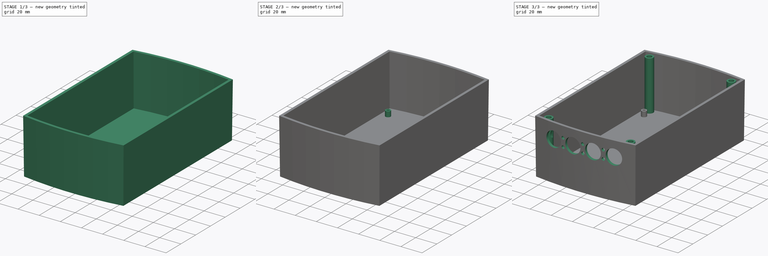
[diagram: build sequence overview — one tinted view per stage of 3, left to right]
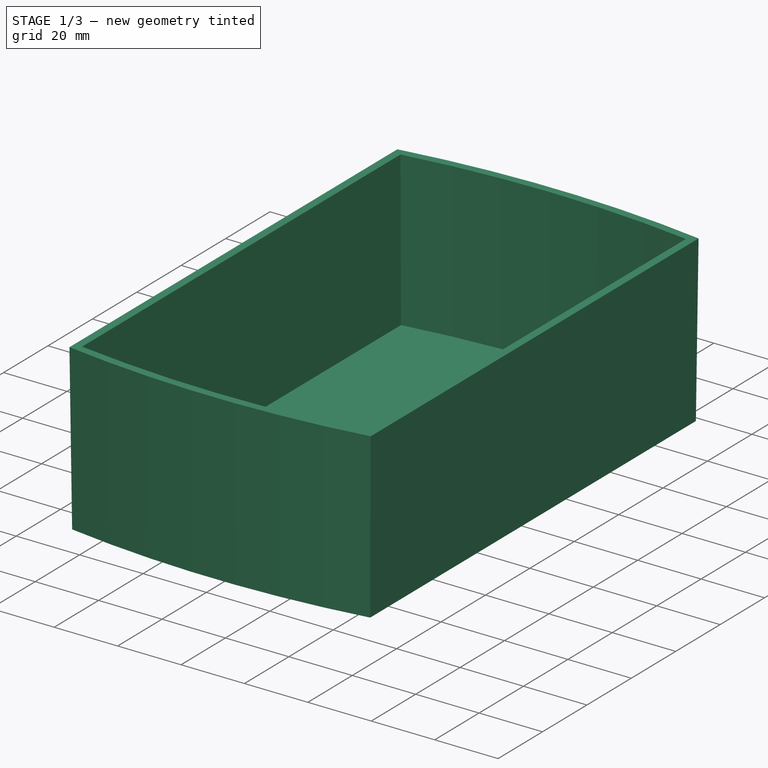
[diagram: stage 1 of 3 — iso view after this stage's code; geometry added in this stage tinted green]
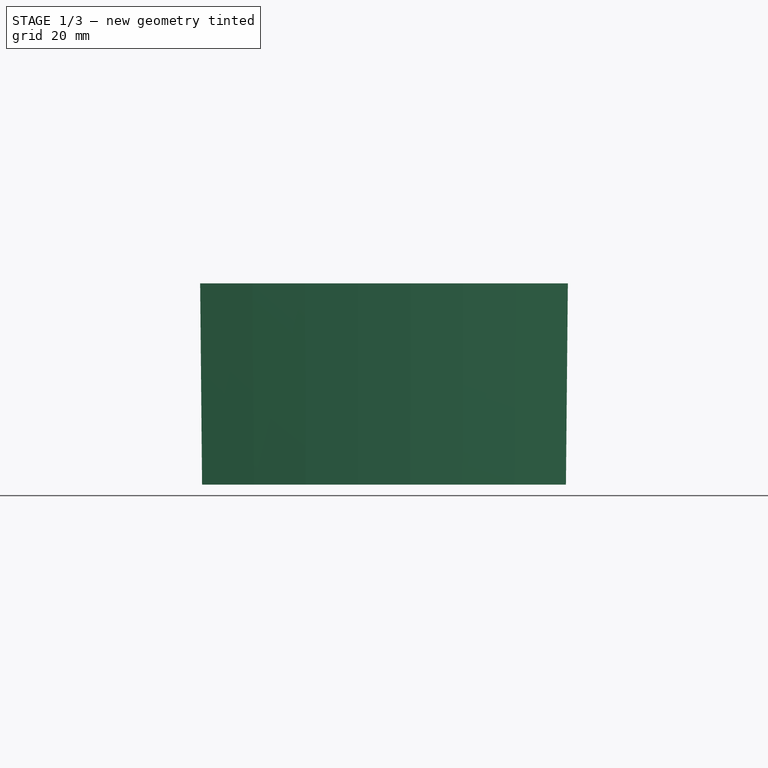
[diagram: stage 1 of 3 — front view after this stage's code; geometry added in this stage tinted green]
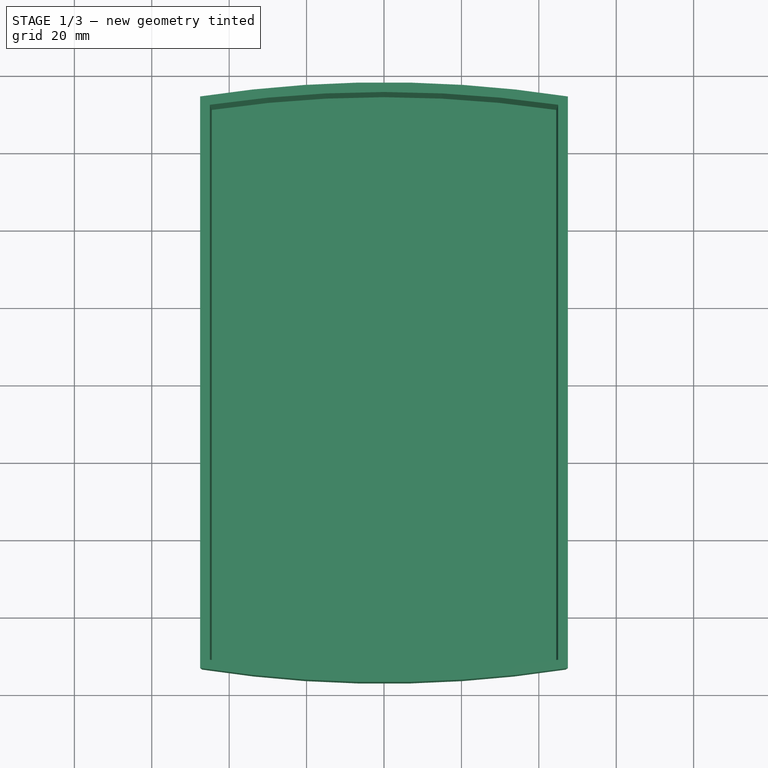
[diagram: stage 1 of 3 — top view after this stage's code; geometry added in this stage tinted green]
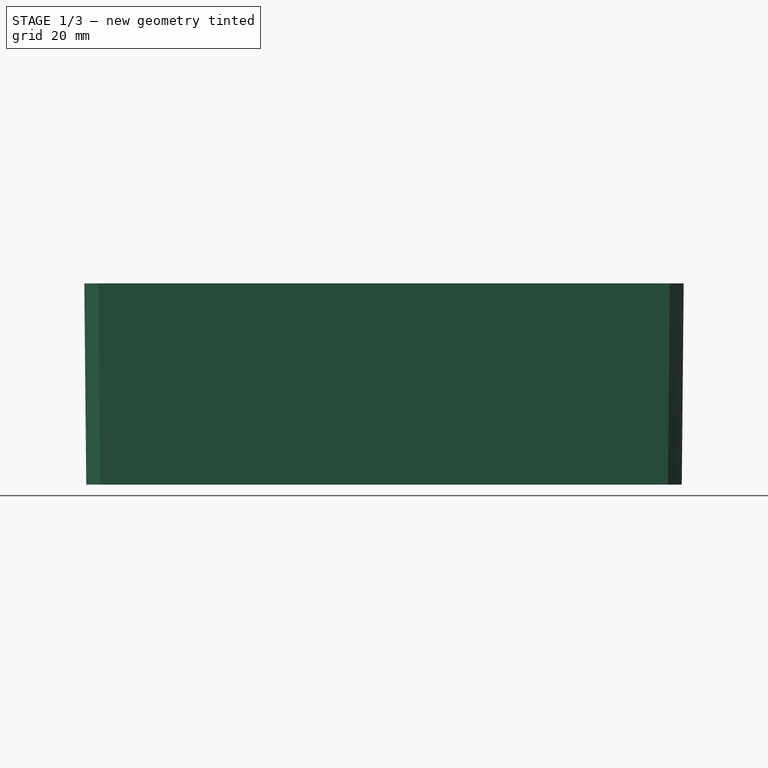
[diagram: stage 1 of 3 — right view after this stage's code; geometry added in this stage tinted green]
FCSTD DOCUMENT  (FreeCAD 1.0R39285 (Git))
Label: CBOX11004
License: All rights reserved
LicenseURL: https://en.wikipedia.org/wiki/All_rights_reserved
objects: Sketcher::SketchObject×7, PartDesign::Pad×2, PartDesign::Plane×1, PartDesign::AdditiveLoft×1, PartDesign::SubtractiveLoft×1, PartDesign::Pocket×1, PartDesign::Body×1
note: 31 computed .brp shape members not serialized (recipe doc carries the construction recipe); baked Part::Feature solids carry a one-line shape summary decoded from their .brp

FEATURE [Sketcher::SketchObject] Sketch
  ArcFitTolerance = 1e-06
  AttachmentSupport = -> [XY_Plane]
  FullyConstrained = true
  MakeInternals = false
  MapMode = 5
  sketch-geometry (10):
    g0: LineSegment StartX=-47 StartY=73.35 StartZ=0 EndX=-47 EndY=-73.35 EndZ=0
    g1: LineSegment [constr] StartX=-47 StartY=-73.35 StartZ=0 EndX=47 EndY=-73.35 EndZ=0
    g2: LineSegment StartX=47 StartY=-73.35 StartZ=0 EndX=47 EndY=73.35 EndZ=0
    g3: LineSegment [constr] StartX=47 StartY=73.35 StartZ=0 EndX=-47 EndY=73.35 EndZ=0
    g4: LineSegment [constr] StartX=-47 StartY=73.35 StartZ=0 EndX=47 EndY=-73.35 EndZ=0
    g5: LineSegment [constr] StartX=47 StartY=73.35 StartZ=0 EndX=-47 EndY=-73.35 EndZ=0
    g6: ArcOfCircle CenterX=-9.23e-14 CenterY=-227.428 CenterZ=0 NormalX=0 NormalY=0 NormalZ=1 AngleXU=0 Radius=304.428 StartAngle=1.41579 EndAngle=1.7258
    g7: ArcOfCircle CenterX=-8.03e-14 CenterY=227.428 CenterZ=0 NormalX=0 NormalY=0 NormalZ=1 AngleXU=0 Radius=304.428 StartAngle=4.55738 EndAngle=4.8674
    g8: GeomPoint X=0 Y=77 Z=0
    g9: GeomPoint X=0 Y=-77 Z=0
  constraints (26):
    c: Coincident(g0,g1)
    c: Coincident(g1,g2)
    c: Coincident(g2,g3)
    c: Coincident(g3,g0)
    c: Vertical(g0)
    c: Vertical(g2)
    c: Horizontal(g1)
    c: Horizontal(g3)
    c: Coincident(g4,g0)
    c: Coincident(g4,g1)
    c: Coincident(g5,g2)
    c: Coincident(g5,g0)
    c: PointOnObject(g-1,g4)
    c: PointOnObject(g-1,g5)
    c: Distance(g2,g0) = 94
    c: Coincident(g6,g0)
    c: Coincident(g6,g2)
    c: Coincident(g7,g0)
    c: Coincident(g7,g1)
    c: Equal(g6,g7)
    c: PointOnObject(g8,g6)
    c: PointOnObject(g9,g7)
    c: PointOnObject(g9,g-2)
    c: PointOnObject(g8,g-2)
    c: DistanceY(g9,g8) = 154
    c: DistanceY(g2,g2) = 146.7
FEATURE [PartDesign::Plane] DatumPlane
  AttachmentOffset = pos=(0,0,52) rot=(0,0,1;0rad)
  AttachmentSupport = -> [Sketch]
  Length = 119.263
  MapMode = 2
  Placement = pos=(0,0,52) rot=(0,0,1;0rad)
  ResizeMode = 0
  Width = 179.189
FEATURE [Sketcher::SketchObject] Sketch001
  ArcFitTolerance = 1e-06
  AttachmentSupport = -> [DatumPlane]
  FullyConstrained = true
  MakeInternals = false
  MapMode = 5
  Placement = pos=(0,0,52) rot=(0,0,1;0rad)
  sketch-geometry (10):
    g0: LineSegment [constr] StartX=-47.5 StartY=-73.85 StartZ=0 EndX=47.5 EndY=-73.85 EndZ=0
    g1: LineSegment StartX=47.5 StartY=-73.85 StartZ=0 EndX=47.5 EndY=73.85 EndZ=0
    g2: LineSegment [constr] StartX=47.5 StartY=73.85 StartZ=0 EndX=-47.5 EndY=73.85 EndZ=0
    g3: LineSegment StartX=-47.5 StartY=73.85 StartZ=0 EndX=-47.5 EndY=-73.85 EndZ=0
    g4: LineSegment [constr] StartX=-47.5 StartY=73.85 StartZ=0 EndX=47.5 EndY=-73.85 EndZ=0
    g5: LineSegment [constr] StartX=-47.5 StartY=-73.85 StartZ=0 EndX=47.5 EndY=73.85 EndZ=0
    g6: ArcOfCircle CenterX=-1.84e-14 CenterY=-233.4 CenterZ=0 NormalX=0 NormalY=0 NormalZ=1 AngleXU=0 Radius=310.9 StartAngle=1.41741 EndAngle=1.72418
    g7: ArcOfCircle CenterX=5.84e-14 CenterY=233.4 CenterZ=0 NormalX=0 NormalY=0 NormalZ=1 AngleXU=0 Radius=310.9 StartAngle=4.55901 EndAngle=4.86577
    g8: GeomPoint X=0 Y=77.5 Z=0
    g9: GeomPoint X=0 Y=-77.5 Z=0
  constraints (26):
    c: Coincident(g0,g1)
    c: Coincident(g1,g2)
    c: Coincident(g2,g3)
    c: Coincident(g3,g0)
    c: Horizontal(g0)
    c: Horizontal(g2)
    c: Vertical(g1)
    c: Vertical(g3)
    c: Coincident(g4,g2)
    c: Coincident(g4,g0)
    c: Coincident(g5,g0)
    c: Coincident(g5,g1)
    c: PointOnObject(g-1,g4)
    c: PointOnObject(g-1,g5)
    c: Coincident(g6,g2)
    c: Coincident(g6,g1)
    c: Coincident(g7,g0)
    c: Coincident(g7,g0)
    c: Equal(g7,g6)
    c: PointOnObject(g8,g6)
    c: PointOnObject(g9,g7)
    c: PointOnObject(g9,g-2)
    c: PointOnObject(g8,g-2)
    c: DistanceY(g9,g8) = 155
    c: DistanceY(g1,g1) = 147.7
    c: Distance(g3,g1) = 95
FEATURE [PartDesign::AdditiveLoft] AdditiveLoft
  Closed = false
  Profile = -> Sketch
  Refine = true
  Ruled = false
  Sections = -> [Sketch001]
  Suppressed = false
FEATURE [Sketcher::SketchObject] Sketch002
  ArcFitTolerance = 1e-06
  AttachmentOffset = pos=(0,0,3.7) rot=(0,0,1;0rad)
  AttachmentSupport = -> [XY_Plane]
  ExternalGeometry = -> [Sketch]
  FullyConstrained = true
  MakeInternals = false
  MapMode = 5
  Placement = pos=(0,0,3.7) rot=(0,0,1;0rad)
  sketch-geometry (11):
    g0: LineSegment [constr] StartX=-47 StartY=73.35 StartZ=0 EndX=-47 EndY=-73.35 EndZ=0
    g1: LineSegment [constr] StartX=47 StartY=73.35 StartZ=0 EndX=47 EndY=-73.35 EndZ=0
    g2: ArcOfCircle [constr] CenterX=-7.85e-14 CenterY=227.428 CenterZ=0 NormalX=0 NormalY=0 NormalZ=1 AngleXU=0 Radius=304.428 StartAngle=4.55738 EndAngle=4.8674
    g3: ArcOfCircle CenterX=-7.85e-14 CenterY=227.428 CenterZ=0 NormalX=0 NormalY=0 NormalZ=1 AngleXU=0 Radius=301.928 StartAngle=4.56446 EndAngle=4.86031
    g4: LineSegment StartX=44.5 StartY=71.2027 StartZ=0 EndX=44.5 EndY=-71.2027 EndZ=0
    g5: ArcOfCircle CenterX=-9.23e-14 CenterY=-227.428 CenterZ=0 NormalX=0 NormalY=0 NormalZ=1 AngleXU=0 Radius=301.928 StartAngle=1.42287 EndAngle=1.71872
    g6: LineSegment StartX=-44.5 StartY=71.2027 StartZ=0 EndX=-44.5 EndY=-71.2027 EndZ=0
    g7: GeomPoint X=0 Y=77 Z=0
    g8: GeomPoint X=0 Y=74.5 Z=0
    g9: GeomPoint X=0 Y=-74.5 Z=0
    g10: GeomPoint X=0 Y=-77 Z=0
  constraints (27):
    c: Coincident(g0,g-5)
    c: Coincident(g0,g-6)
    c: Coincident(g1,g-4)
    c: Coincident(g1,g-6)
    c: Coincident(g2,g0)
    c: Coincident(g2,g1)
    c: Equal(g2,g-6)
    c: Coincident(g3,g4)
    c: Coincident(g3,g6)
    c: Coincident(g4,g5)
    c: Coincident(g5,g6)
    c: Coincident(g2,g3)
    c: Parallel(g0,g6)
    c: Parallel(g4,g1)
    c: Distance(g0,g6) = 2.5
    c: Distance(g1,g4) = 2.5
    c: PointOnObject(g8,g5)
    c: PointOnObject(g9,g3)
    c: PointOnObject(g10,g2)
    c: PointOnObject(g10,g-2)
    c: PointOnObject(g9,g-2)
    c: PointOnObject(g8,g-2)
    c: PointOnObject(g7,g-3)
    c: PointOnObject(g7,g-2)
    c: DistanceY(g8,g7) = 2.5
    c: DistanceY(g10,g9) = 2.5
    c: Coincident(g5,g-3)
FEATURE [Sketcher::SketchObject] Sketch003
  ArcFitTolerance = 1e-06
  AttachmentSupport = -> [DatumPlane]
  ExternalGeometry = -> [Sketch001]
  FullyConstrained = true
  MakeInternals = false
  MapMode = 5
  Placement = pos=(0,0,52) rot=(0,0,1;0rad)
  sketch-geometry (11):
    g0: ArcOfCircle [constr] CenterX=1.3e-13 CenterY=-233.4 CenterZ=0 NormalX=0 NormalY=0 NormalZ=1 AngleXU=0 Radius=310.9 StartAngle=1.41741 EndAngle=1.72418
    g1: ArcOfCircle [constr] CenterX=-4.15e-14 CenterY=233.4 CenterZ=0 NormalX=0 NormalY=0 NormalZ=1 AngleXU=0 Radius=310.9 StartAngle=4.55901 EndAngle=4.86577
    g2: LineSegment [constr] StartX=-47.5 StartY=73.85 StartZ=0 EndX=-47.5 EndY=-73.85 EndZ=0
    g3: LineSegment [constr] StartX=47.5 StartY=-73.85 StartZ=0 EndX=47.5 EndY=73.85 EndZ=0
    g4: LineSegment StartX=45 StartY=-71.6993 StartZ=0 EndX=45 EndY=71.6993 EndZ=0
    g5: ArcOfCircle CenterX=1.3e-13 CenterY=-233.4 CenterZ=0 NormalX=0 NormalY=0 NormalZ=1 AngleXU=0 Radius=308.4 StartAngle=1.42436 EndAngle=1.71723
    g6: LineSegment StartX=-45 StartY=71.6993 StartZ=0 EndX=-45 EndY=-71.6993 EndZ=0
    g7: ArcOfCircle CenterX=-4.15e-14 CenterY=233.4 CenterZ=0 NormalX=0 NormalY=0 NormalZ=1 AngleXU=0 Radius=308.4 StartAngle=4.56595 EndAngle=4.85883
    g8: GeomPoint X=0 Y=75 Z=0
    g9: GeomPoint X=0 Y=77.5 Z=0
    g10: GeomPoint X=0 Y=-75 Z=0
  constraints (28):
    c: Coincident(g0,g-7)
    c: Coincident(g0,g-4)
    c: Coincident(g1,g-7)
    c: Coincident(g1,g-6)
    c: Coincident(g2,g0)
    c: Coincident(g2,g1)
    c: Coincident(g3,g1)
    c: Coincident(g3,g0)
    c: Coincident(g-3,g0)
    c: Coincident(g1,g-6)
    c: Coincident(g4,g5)
    c: Coincident(g4,g7)
    c: Coincident(g5,g6)
    c: Coincident(g6,g7)
    c: Parallel(g2,g6)
    c: Parallel(g4,g3)
    c: Coincident(g7,g1)
    c: Coincident(g5,g0)
    c: Distance(g2,g6) = 2.5
    c: Distance(g3,g4) = 2.5
    c: PointOnObject(g8,g5)
    c: PointOnObject(g9,g0)
    c: PointOnObject(g10,g7)
    c: PointOnObject(g10,g-2)
    c: PointOnObject(g8,g-2)
    c: PointOnObject(g9,g-2)
    c: DistanceY(g8,g9) = 2.5
    c: DistanceY(g-5,g10) = 2.5
FEATURE [PartDesign::SubtractiveLoft] SubtractiveLoft
  BaseFeature = -> AdditiveLoft
  Closed = false
  Profile = -> Sketch002
  Refine = true
  Ruled = false
  Sections = -> [Sketch003]
  Suppressed = false
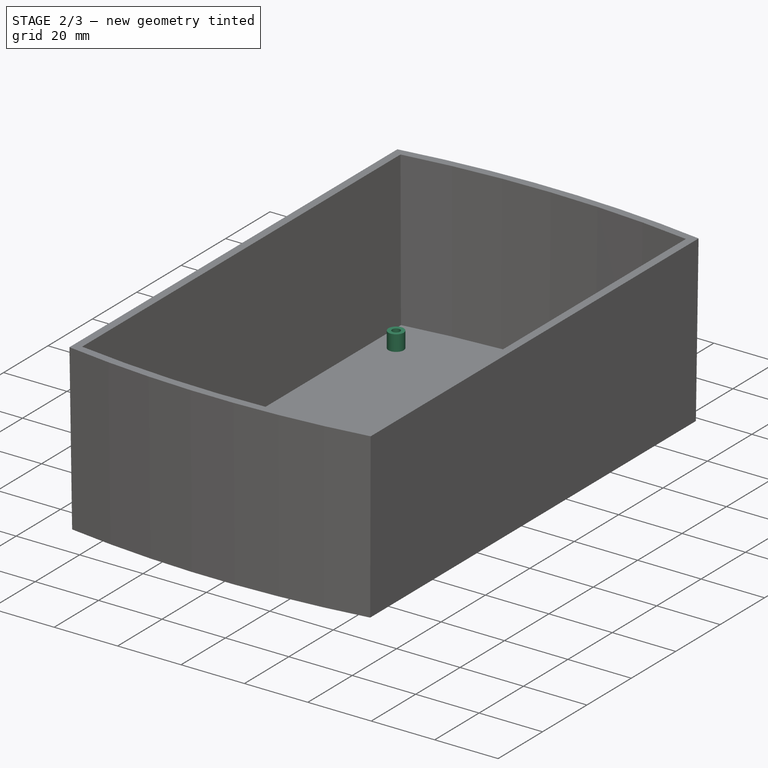
[diagram: stage 2 of 3 — iso view after this stage's code; geometry added in this stage tinted green]
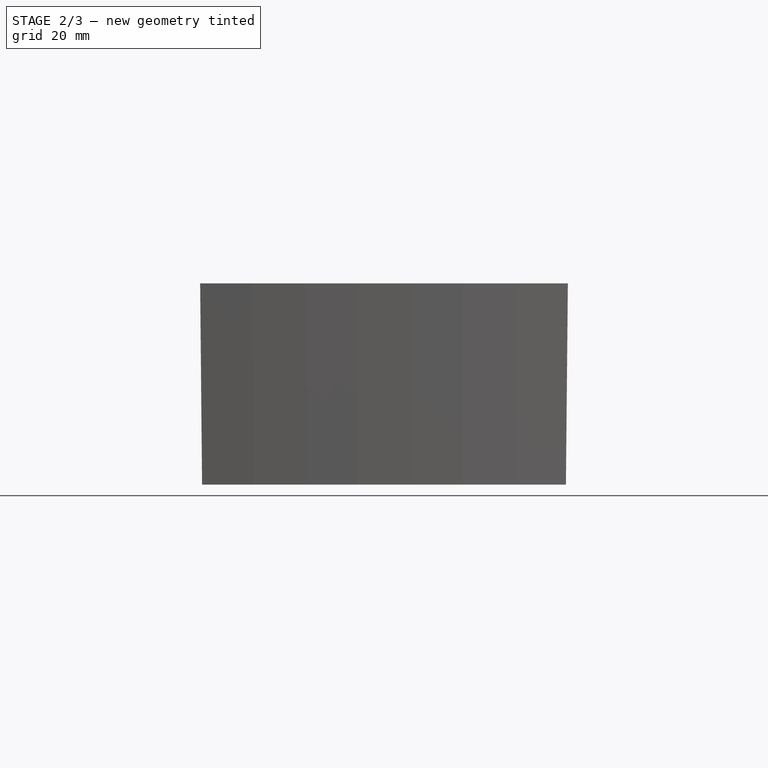
[diagram: stage 2 of 3 — front view after this stage's code; geometry added in this stage tinted green]
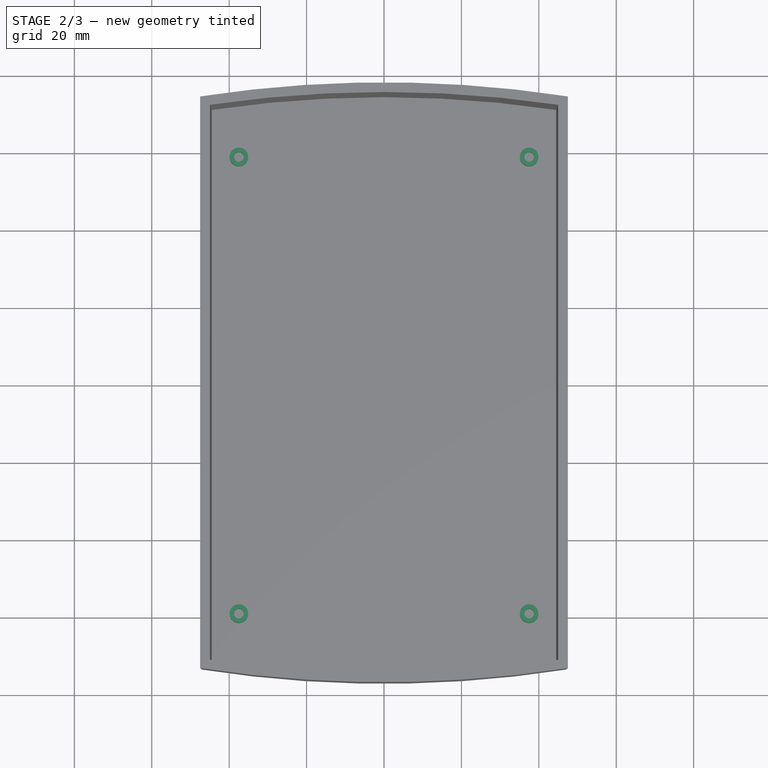
[diagram: stage 2 of 3 — top view after this stage's code; geometry added in this stage tinted green]
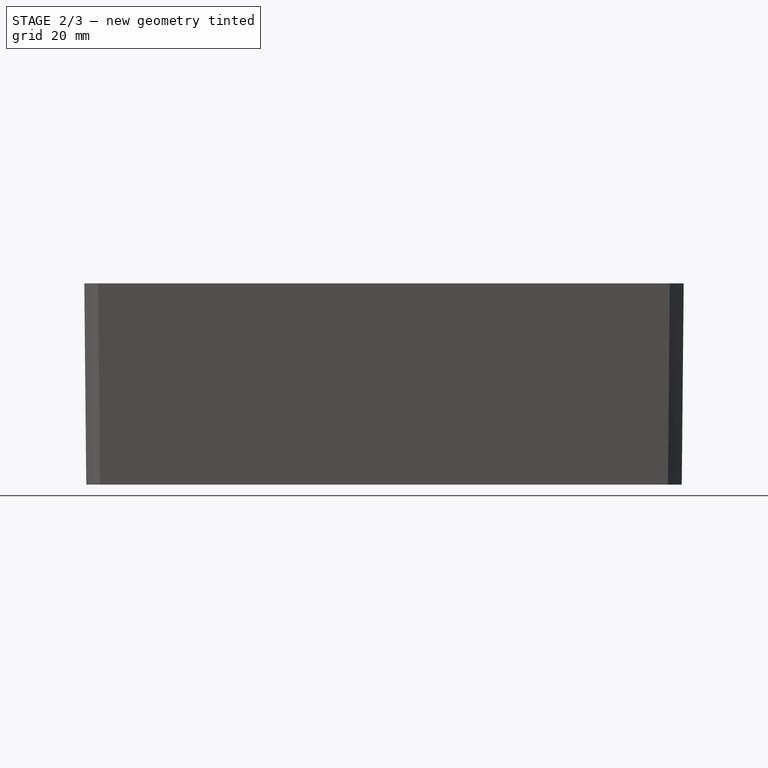
[diagram: stage 2 of 3 — right view after this stage's code; geometry added in this stage tinted green]
FEATURE [Sketcher::SketchObject] Sketch004
  ArcFitTolerance = 1e-06
  AttachmentSupport = -> [XY_Plane]
  FullyConstrained = true
  MakeInternals = false
  MapMode = 5
  sketch-geometry (14):
    g0: LineSegment [constr] StartX=-37.5 StartY=-59 StartZ=0 EndX=37.5 EndY=-59 EndZ=0
    g1: LineSegment [constr] StartX=37.5 StartY=-59 StartZ=0 EndX=37.5 EndY=59 EndZ=0
    g2: LineSegment [constr] StartX=37.5 StartY=59 StartZ=0 EndX=-37.5 EndY=59 EndZ=0
    g3: LineSegment [constr] StartX=-37.5 StartY=59 StartZ=0 EndX=-37.5 EndY=-59 EndZ=0
    g4: LineSegment [constr] StartX=-37.5 StartY=59 StartZ=0 EndX=37.5 EndY=-59 EndZ=0
    g5: LineSegment [constr] StartX=-37.5 StartY=-59 StartZ=0 EndX=37.5 EndY=59 EndZ=0
    g6: Circle CenterX=-37.5 CenterY=59 CenterZ=0 NormalX=0 NormalY=0 NormalZ=1 AngleXU=0 Radius=2.4
    g7: Circle CenterX=37.5 CenterY=59 CenterZ=0 NormalX=0 NormalY=0 NormalZ=1 AngleXU=0 Radius=2.4
    g8: Circle CenterX=37.5 CenterY=-59 CenterZ=0 NormalX=0 NormalY=0 NormalZ=1 AngleXU=0 Radius=2.4
    g9: Circle CenterX=-37.5 CenterY=-59 CenterZ=0 NormalX=0 NormalY=0 NormalZ=1 AngleXU=0 Radius=2.4
    g10: Circle CenterX=-37.5 CenterY=-59 CenterZ=0 NormalX=0 NormalY=0 NormalZ=1 AngleXU=0 Radius=1.25
    g11: Circle CenterX=37.5 CenterY=-59 CenterZ=0 NormalX=0 NormalY=0 NormalZ=1 AngleXU=0 Radius=1.25
    g12: Circle CenterX=37.5 CenterY=59 CenterZ=0 NormalX=0 NormalY=0 NormalZ=1 AngleXU=0 Radius=1.25
    g13: Circle CenterX=-37.5 CenterY=59 CenterZ=0 NormalX=0 NormalY=0 NormalZ=1 AngleXU=0 Radius=1.25
  constraints (32):
    c: Coincident(g0,g1)
    c: Coincident(g1,g2)
    c: Coincident(g2,g3)
    c: Coincident(g3,g0)
    c: Horizontal(g0)
    c: Horizontal(g2)
    c: Vertical(g1)
    c: Vertical(g3)
    c: Coincident(g4,g2)
    c: Coincident(g4,g0)
    c: Coincident(g5,g0)
    c: Coincident(g5,g1)
    c: PointOnObject(g-1,g4)
    c: PointOnObject(g-1,g5)
    c: DistanceY(g1,g1) = 118
    c: DistanceX(g0,g0) = 75
    c: Coincident(g7,g1)
    c: Coincident(g8,g0)
    c: Coincident(g9,g0)
    c: Coincident(g10,g0)
    c: Coincident(g11,g0)
    c: Coincident(g13,g6)
    c: Coincident(g12,g1)
    c: Equal(g6,g7)
    c: Equal(g13,g12)
    c: Equal(g12,g11)
    c: Equal(g10,g11)
    c: Equal(g8,g9)
    c: Diameter(g6) = 4.8
    c: Diameter(g12) = 2.5
    c: Coincident(g6,g2)
    c: Equal(g8,g7)
FEATURE [PartDesign::Pad] Pad
  BaseFeature = -> SubtractiveLoft
  Direction = (0,0,1)
  Length = 8.7
  Length2 = 10
  Profile = -> Sketch004
  ReferenceAxis = -> Sketch004 [N_Axis]
  Refine = true
  Suppressed = false
  Type = 0
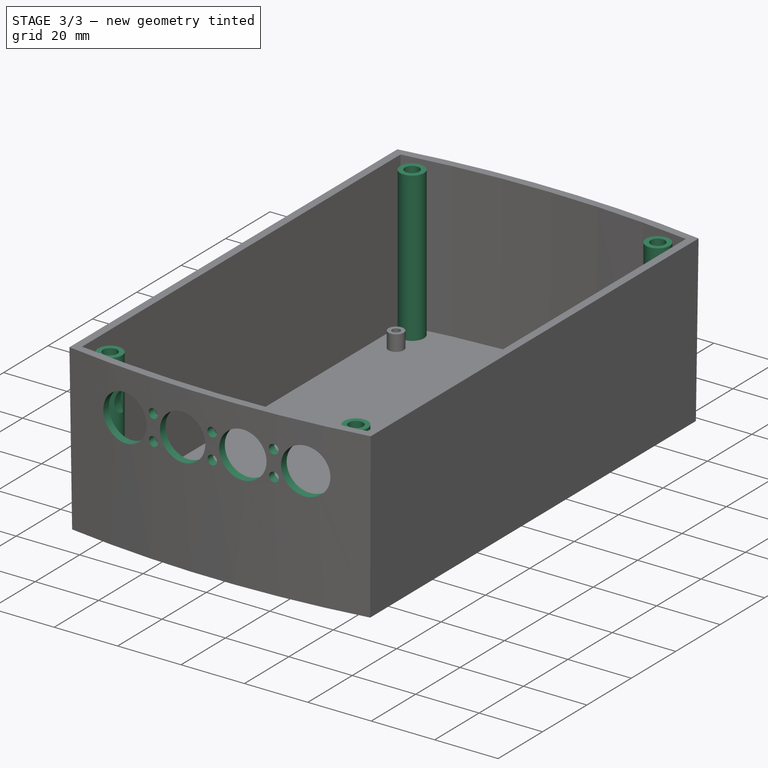
[diagram: stage 3 of 3 — iso view after this stage's code; geometry added in this stage tinted green]
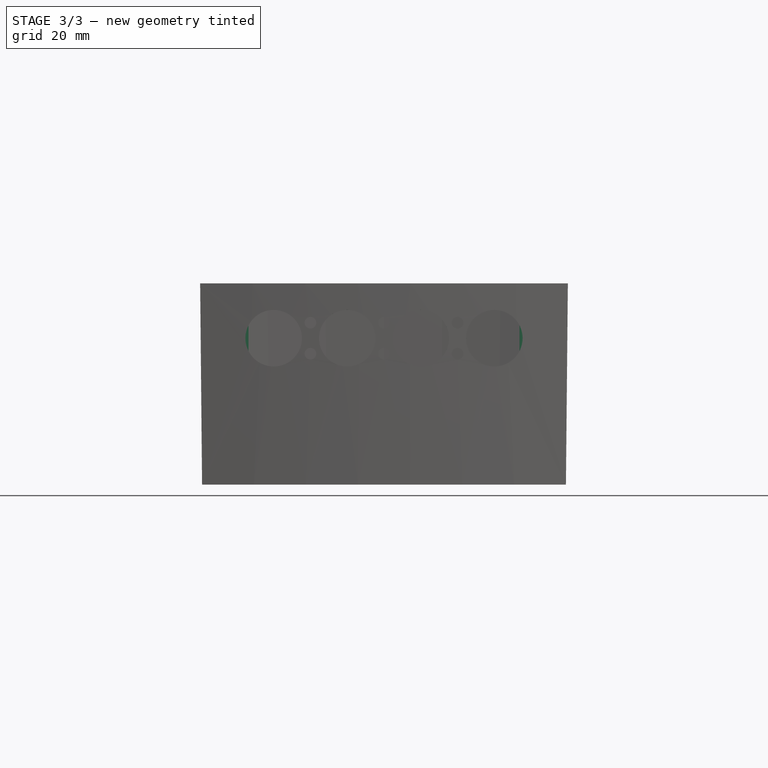
[diagram: stage 3 of 3 — front view after this stage's code; geometry added in this stage tinted green]
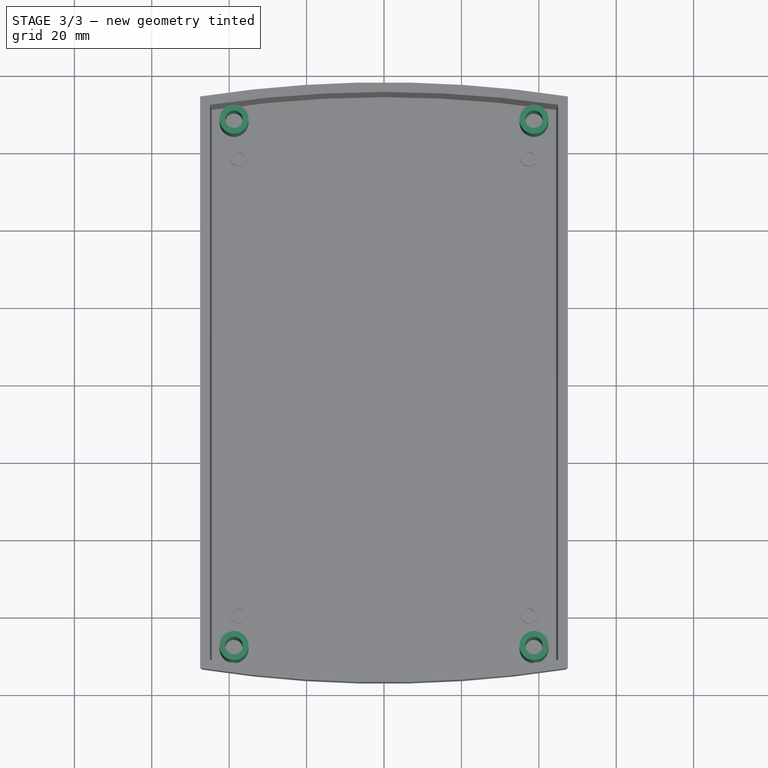
[diagram: stage 3 of 3 — top view after this stage's code; geometry added in this stage tinted green]
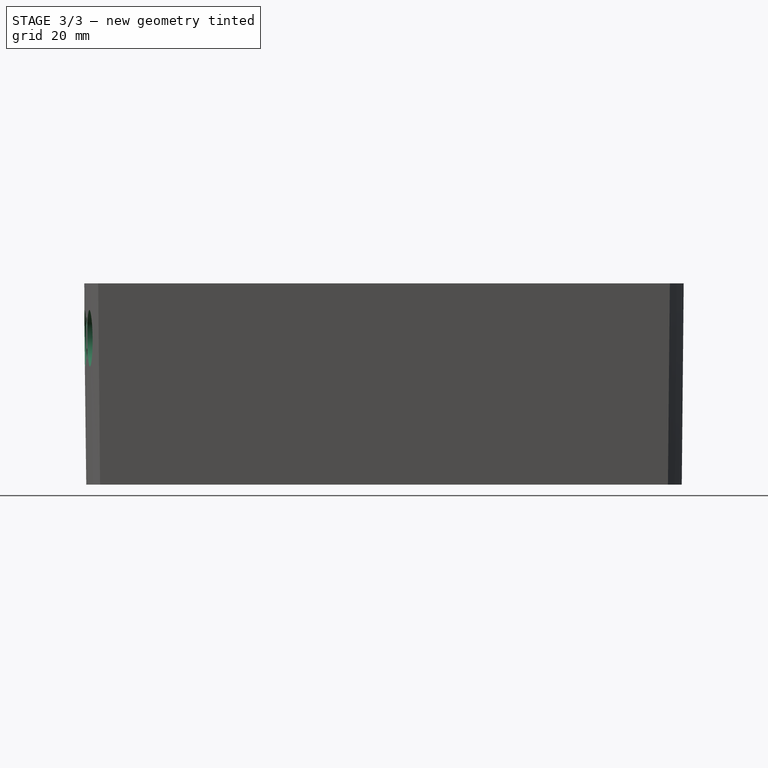
[diagram: stage 3 of 3 — right view after this stage's code; geometry added in this stage tinted green]
FEATURE [Sketcher::SketchObject] Sketch005
  ArcFitTolerance = 1e-06
  AttachmentSupport = -> [XY_Plane]
  FullyConstrained = true
  MakeInternals = false
  MapMode = 5
  sketch-geometry (14):
    g0: LineSegment [constr] StartX=-38.75 StartY=68 StartZ=0 EndX=-38.75 EndY=-68 EndZ=0
    g1: LineSegment [constr] StartX=-38.75 StartY=-68 StartZ=0 EndX=38.75 EndY=-68 EndZ=0
    g2: LineSegment [constr] StartX=38.75 StartY=-68 StartZ=0 EndX=38.75 EndY=68 EndZ=0
    g3: LineSegment [constr] StartX=38.75 StartY=68 StartZ=0 EndX=-38.75 EndY=68 EndZ=0
    g4: LineSegment [constr] StartX=-38.75 StartY=68 StartZ=0 EndX=38.75 EndY=-68 EndZ=0
    g5: LineSegment [constr] StartX=-38.75 StartY=-68 StartZ=0 EndX=38.75 EndY=68 EndZ=0
    g6: Circle CenterX=38.75 CenterY=-68 CenterZ=0 NormalX=0 NormalY=0 NormalZ=1 AngleXU=0 Radius=3.75
    g7: Circle CenterX=-38.75 CenterY=-68 CenterZ=0 NormalX=0 NormalY=0 NormalZ=1 AngleXU=0 Radius=3.75
    g8: Circle CenterX=-38.75 CenterY=-68 CenterZ=0 NormalX=0 NormalY=0 NormalZ=1 AngleXU=0 Radius=2.25
    g9: Circle CenterX=38.75 CenterY=-68 CenterZ=0 NormalX=0 NormalY=0 NormalZ=1 AngleXU=0 Radius=2.25
    g10: Circle CenterX=38.75 CenterY=68 CenterZ=0 NormalX=0 NormalY=0 NormalZ=1 AngleXU=0 Radius=2.25
    g11: Circle CenterX=38.75 CenterY=68 CenterZ=0 NormalX=0 NormalY=0 NormalZ=1 AngleXU=0 Radius=3.75
    g12: Circle CenterX=-38.75 CenterY=68 CenterZ=0 NormalX=0 NormalY=0 NormalZ=1 AngleXU=0 Radius=3.75
    g13: Circle CenterX=-38.75 CenterY=68 CenterZ=0 NormalX=0 NormalY=0 NormalZ=1 AngleXU=0 Radius=2.25
  constraints (32):
    c: Coincident(g0,g1)
    c: Coincident(g1,g2)
    c: Coincident(g2,g3)
    c: Coincident(g3,g0)
    c: Vertical(g0)
    c: Vertical(g2)
    c: Horizontal(g1)
    c: Horizontal(g3)
    c: Coincident(g4,g0)
    c: Coincident(g4,g1)
    c: Coincident(g5,g2)
    c: Coincident(g5,g0)
    c: PointOnObject(g-1,g5)
    c: PointOnObject(g-1,g4)
    c: DistanceY(g2,g2) = 136
    c: DistanceX(g1,g1) = 77.5
    c: Coincident(g6,g1)
    c: Coincident(g7,g0)
    c: Coincident(g8,g0)
    c: Coincident(g9,g1)
    c: Coincident(g10,g2)
    c: Coincident(g11,g2)
    c: Coincident(g12,g0)
    c: Coincident(g13,g0)
    c: Equal(g13,g10)
    c: Equal(g10,g9)
    c: Equal(g9,g8)
    c: Equal(g7,g6)
    c: Equal(g6,g11)
    c: Equal(g11,g12)
    c: Diameter(g10) = 4.5
    c: Diameter(g11) = 7.5
FEATURE [PartDesign::Pad] Pad001
  BaseFeature = -> Pad
  Direction = (0,0,1)
  Length = 50.8
  Length2 = 10
  Profile = -> Sketch005
  ReferenceAxis = -> Sketch005 [N_Axis]
  Refine = true
  Suppressed = false
  Type = 0
FEATURE [Sketcher::SketchObject] Sketch006
  ArcFitTolerance = 1e-06
  AttachmentOffset = pos=(0,0,77.5) rot=(0,0,1;0rad)
  AttachmentSupport = -> [XZ_Plane]
  FullyConstrained = true
  MakeInternals = false
  MapMode = 5
  Placement = pos=(0,-77.5,1.72e-14) rot=(1,0,0;1.5708rad)
  sketch-geometry (15):
    g0: Circle CenterX=-28.5 CenterY=37.836 CenterZ=0 NormalX=0 NormalY=0 NormalZ=1 AngleXU=0 Radius=7.3
    g1: Circle CenterX=-9.5 CenterY=37.836 CenterZ=0 NormalX=0 NormalY=0 NormalZ=1 AngleXU=0 Radius=7.3
    g2: Circle CenterX=9.5 CenterY=37.836 CenterZ=0 NormalX=0 NormalY=0 NormalZ=1 AngleXU=0 Radius=7.3
    g3: Circle CenterX=28.5 CenterY=37.836 CenterZ=0 NormalX=0 NormalY=0 NormalZ=1 AngleXU=0 Radius=7.3
    g4: LineSegment [constr] StartX=-9.5 StartY=37.836 StartZ=0 EndX=9.5 EndY=37.836 EndZ=0
    g5: LineSegment [constr] StartX=9.5 StartY=37.836 StartZ=0 EndX=28.5 EndY=37.836 EndZ=0
    g6: LineSegment [constr] StartX=-9.5 StartY=37.836 StartZ=0 EndX=-28.5 EndY=37.836 EndZ=0
    g7: GeomPoint X=0 Y=37.836 Z=0
    g8: Circle CenterX=-19 CenterY=41.836 CenterZ=0 NormalX=0 NormalY=0 NormalZ=1 AngleXU=0 Radius=1.5
    g9: Circle CenterX=-19 CenterY=33.836 CenterZ=0 NormalX=0 NormalY=0 NormalZ=1 AngleXU=0 Radius=1.5
    g10: Circle CenterX=19 CenterY=41.836 CenterZ=0 NormalX=0 NormalY=0 NormalZ=1 AngleXU=0 Radius=1.5
    g11: Circle CenterX=19 CenterY=33.836 CenterZ=0 NormalX=0 NormalY=0 NormalZ=1 AngleXU=0 Radius=1.5
    g12: Circle CenterX=0 CenterY=33.836 CenterZ=0 NormalX=0 NormalY=0 NormalZ=1 AngleXU=0 Radius=1.5
    g13: Circle CenterX=-1e-16 CenterY=41.836 CenterZ=0 NormalX=0 NormalY=0 NormalZ=1 AngleXU=0 Radius=1.5
    g14: GeomPoint X=-19 Y=37.836 Z=0
  constraints (34):
    c: Coincident(g4,g1)
    c: Coincident(g4,g2)
    c: Horizontal(g4)
    c: Coincident(g5,g2)
    c: Coincident(g5,g3)
    c: Horizontal(g5)
    c: Coincident(g6,g1)
    c: Coincident(g6,g0)
    c: Equal(g4,g6)
    c: Equal(g4,g5)
    c: Horizontal(g6)
    c: PointOnObject(g7,g-2)
    c: Symmetric(g1,g2,g7)
    c: Equal(g0,g1)
    c: Equal(g1,g2)
    c: Equal(g2,g3)
    c: DistanceX(g4,g4) = 19
    c: Diameter(g3) = 14.6
    c: PointOnObject(g12,g-2)
    c: Symmetric(g8,g11,g7)
    c: Symmetric(g9,g10,g7)
    c: Symmetric(g9,g11,g12)
    c: Symmetric(g8,g10,g13)
    c: Horizontal(g9,g11)
    c: Equal(g8,g13)
    c: Equal(g13,g10)
    c: Equal(g11,g10)
    c: Equal(g11,g12)
    c: Equal(g12,g9)
    c: DistanceY(g-1,g7) = 37.836
    c: DistanceY(g7,g10) = 4
    c: Diameter(g10) = 3
    c: Symmetric(g6,g6,g14)
    c: Vertical(g8,g14)
FEATURE [PartDesign::Pocket] Pocket
  BaseFeature = -> Pad001
  Direction = (0,1,-2e-16)
  Length = 10
  Length2 = 5
  Profile = -> Sketch006
  ReferenceAxis = -> Sketch006 [N_Axis]
  Refine = true
  Suppressed = false
  Type = 0
FEATURE [PartDesign::Body] Body  label="Körper"
  AllowCompound = false
  Group = -> [Sketch,DatumPlane,Sketch001,AdditiveLoft,Sketch002,Sketch003,SubtractiveLoft,Sketch004,Pad,Sketch005,Pad001,Sketch006,Pocket]
  Origin = -> Origin
  Tip = -> Pocket
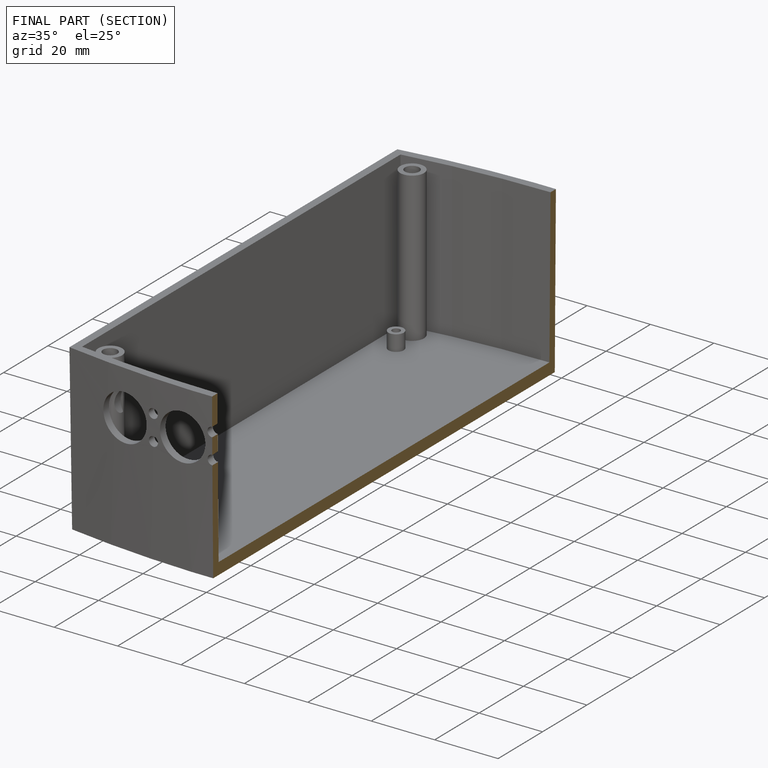
[diagram: finished part — half-section view (interior)]
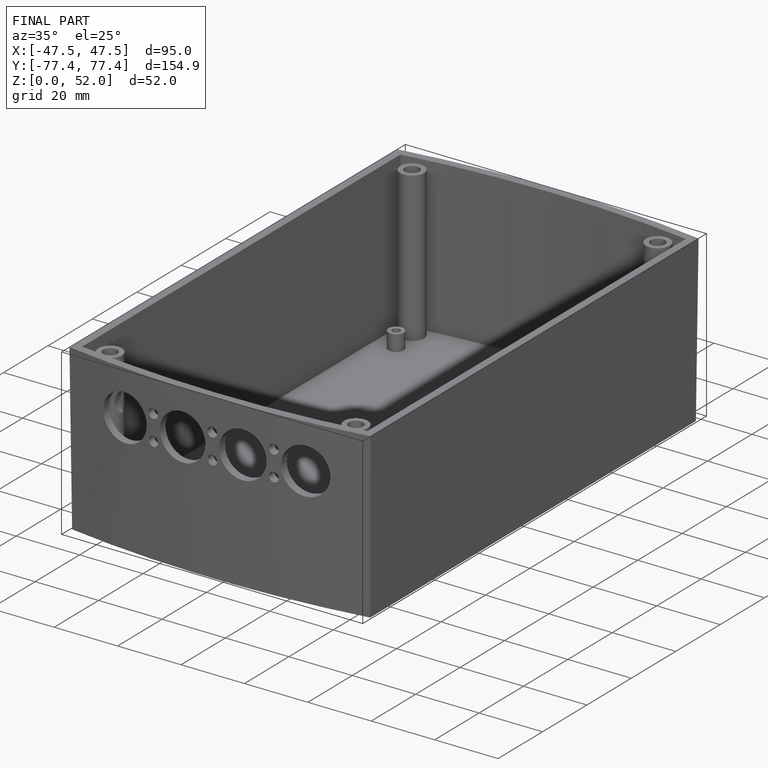
[diagram: finished part — iso view with bounding-box wireframe]
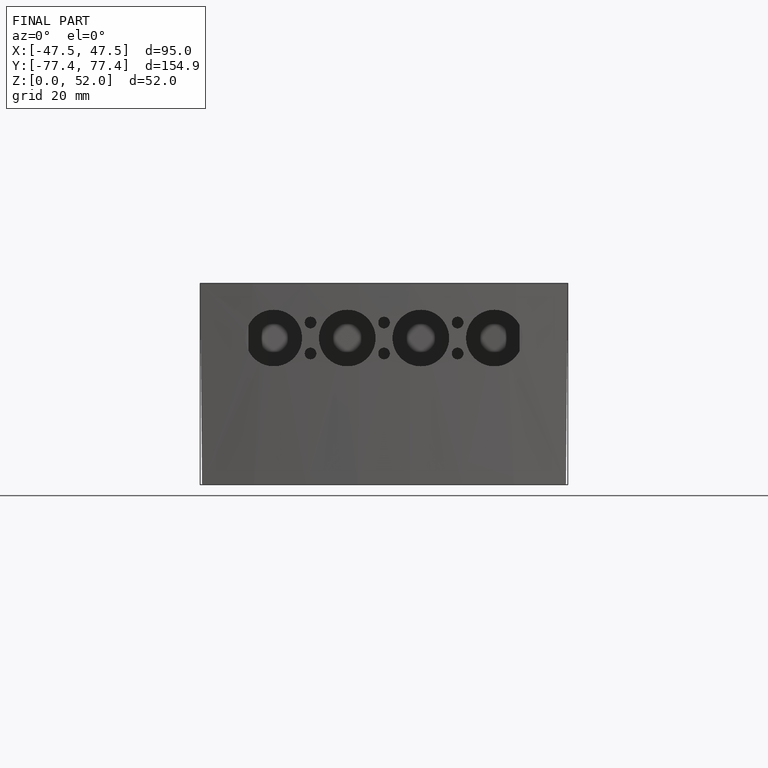
[diagram: finished part — front view with bounding-box wireframe]
